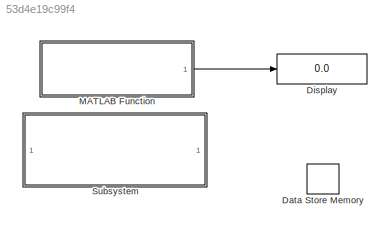
MODEL slx_53d4e19c99f4
KIND model
CONFIG AbsTol = auto
CONFIG EnableMultiTasking = off
CONFIG FixedStep = auto
CONFIG MaxStep = auto
CONFIG MinStep = auto
CONFIG RelTol = 1e-3
CONFIG SampleTimeConstraint = Unconstrained
CONFIG Solver = VariableStepAuto
CONFIG SolverName = VariableStepAuto
CONFIG StartTime = 0.0
CONFIG StopTime = 10.0
BLOCK [DataStoreMemory] Data Store Memory
  DataStoreName = a
  OutDataTypeStr = double
  ReadBeforeWriteMsg = warning
  ShowAdditionalParam = off
  SignalType = real
  WriteAfterReadMsg = warning
  WriteAfterWriteMsg = warning
BLOCK [Display] Display
  Decimation = 1
  Ports = [1]
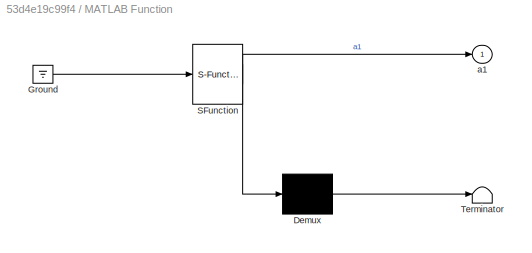
BLOCK [SubSystem] MATLAB Function
  ErrorFcn = Stateflow.Translate.translate
  PermitHierarchicalResolution = ExplicitOnly
  Ports = [0, 1]
  RequestExecContextInheritance = off
  SFBlockType = MATLAB Function
  TreatAsAtomicUnit = on
BLOCK [Demux] MATLAB Function/ Demux 
  Outputs = 1
  Ports = [1, 1]
BLOCK [Ground] MATLAB Function/ Ground 
BLOCK [S-Function] MATLAB Function/ SFunction 
  EnableBusSupport = on
  FunctionName = sf_sfun
  PortCounts = [1 2]
  Ports = [1, 2]
  SFcnIsStateOwnerBlock = off
  SFunctionDeploymentMode = off
  Tag = Stateflow S-Function test1 1
BLOCK [Terminator] MATLAB Function/ Terminator 
BLOCK [Outport] MATLAB Function/a1
  IconDisplay = Port number
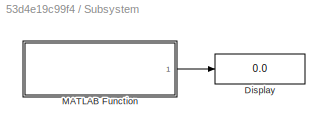
BLOCK [SubSystem] Subsystem
  Ports = []
  RequestExecContextInheritance = off
BLOCK [Display] Subsystem/Display
  Decimation = 1
  Ports = [1]
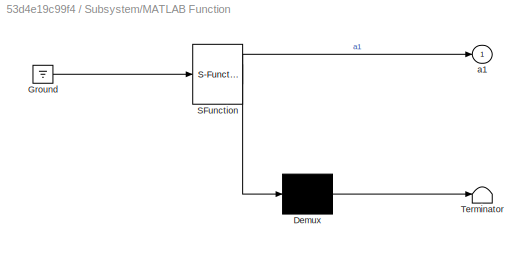
BLOCK [SubSystem] Subsystem/MATLAB Function
  ErrorFcn = Stateflow.Translate.translate
  PermitHierarchicalResolution = ExplicitOnly
  Ports = [0, 1]
  RequestExecContextInheritance = off
  SFBlockType = MATLAB Function
  TreatAsAtomicUnit = on
BLOCK [Demux] Subsystem/MATLAB Function/ Demux 
  Outputs = 1
  Ports = [1, 1]
BLOCK [Ground] Subsystem/MATLAB Function/ Ground 
BLOCK [S-Function] Subsystem/MATLAB Function/ SFunction 
  EnableBusSupport = on
  FunctionName = sf_sfun
  PortCounts = [1 2]
  Ports = [1, 2]
  SFcnIsStateOwnerBlock = off
  SFunctionDeploymentMode = off
  Tag = Stateflow S-Function test1 2
BLOCK [Terminator] Subsystem/MATLAB Function/ Terminator 
BLOCK [Outport] Subsystem/MATLAB Function/a1
  IconDisplay = Port number
LINE MATLAB Function:1 -> Display:1
LINE Subsystem/MATLAB Function:1 -> Subsystem/Display:1
CHART MATLAB Function states=1 transitions=1
  STATE_LABEL 'eML_blk_kernel()'
  STATE_LABEL 'SCRIPT:\nfunction a1=fcn\nglobal a\na1=a;\nftest1\nftest2'
CHART Subsystem/MATLAB Function states=1 transitions=1
  STATE_LABEL 'eML_blk_kernel()'
  STATE_LABEL 'SCRIPT:\nfunction a1=fcn\nglobal a\na1=a;\nftest1\nftest2'
